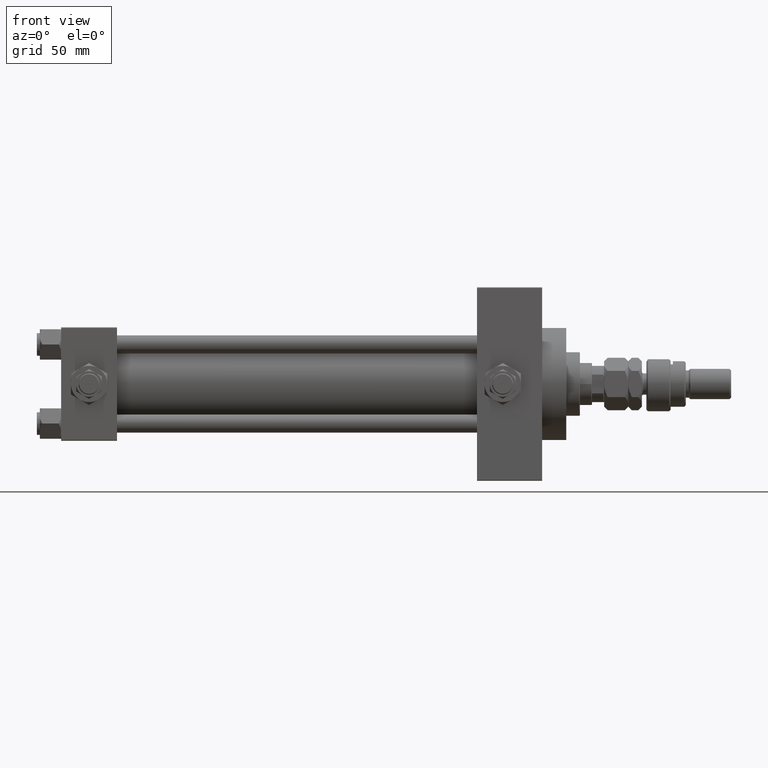
[diagram: clean part render]
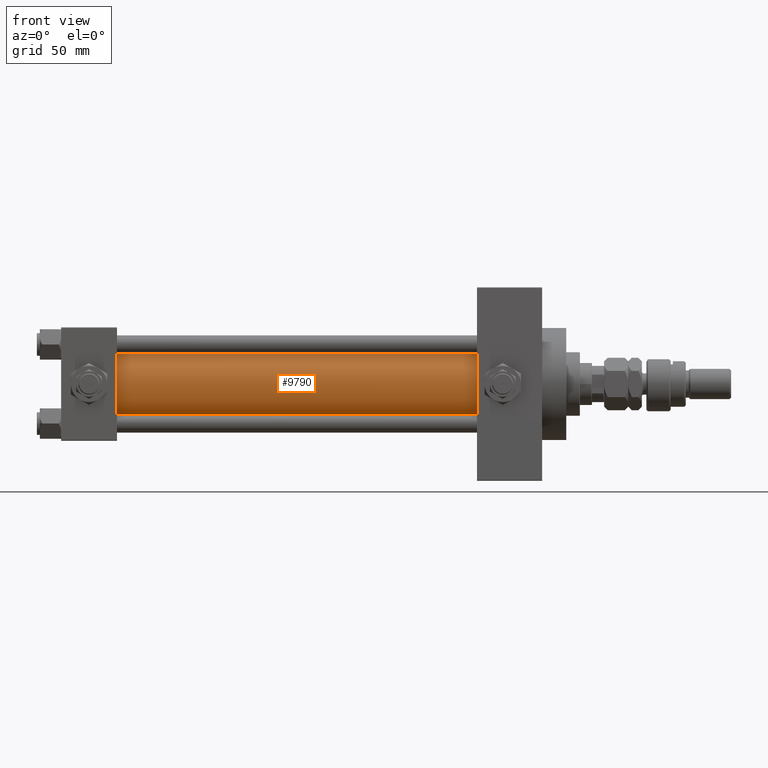
[diagram: same view with one face highlighted and labeled with its STEP entity id]
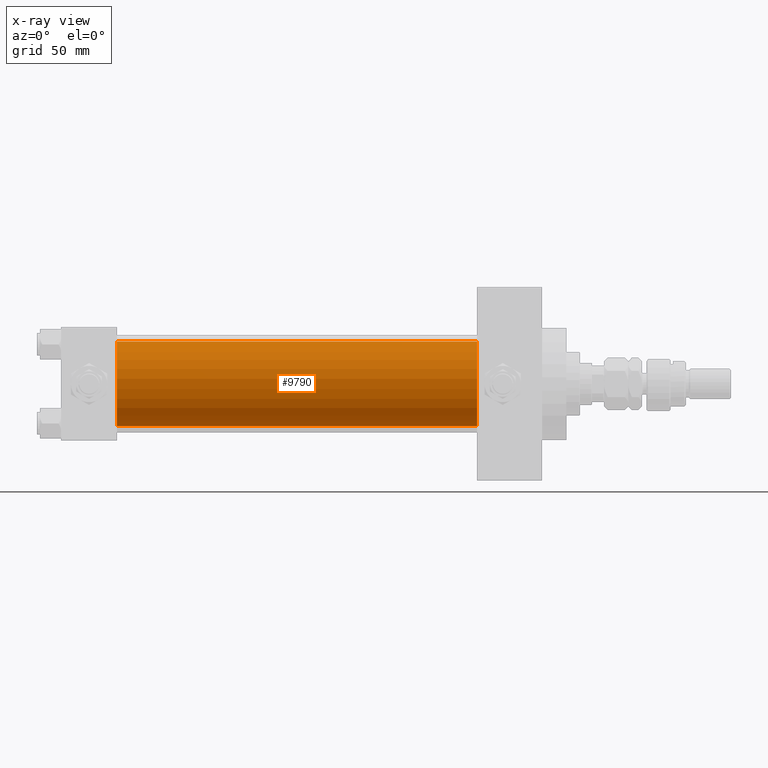
[diagram: x-ray of the same camera — body ghosted, the highlighted face saturated]
A machine part, front view. The second image highlights one B-rep face of the part: STEP entity #9790.
The next image is the same camera in x-ray: the body ghosted, the highlighted face saturated — about 0% of this face is hidden behind the body in this view.
In plain terms, the highlighted cylindrical surface (partial cylindrical patch) has radius 28 mm, axis along (-1, -0, -0).
Its self-contained STEP definition (entity closure, byte-faithful):
#1055 = LINE ( 'NONE', #33991, #37598 ) ;
#1229 = DIRECTION ( 'NONE',  ( -1.000000000000000000, -0.000000000000000000, -0.000000000000000000 ) ) ;
#2188 = EDGE_CURVE ( 'NONE', #15722, #51062, #2885, .T. ) ;
#2885 = CIRCLE ( 'NONE', #29853, 28.00000000000000000 ) ;
#3439 = CARTESIAN_POINT ( 'NONE',  ( 37.00000000000000711, -2.602085213965210642E-15, 0.000000000000000000 ) ) ;
#4143 = CARTESIAN_POINT ( 'NONE',  ( 274.9999999999999432, 8.269258236473784371E-16, -28.00000000000000000 ) ) ;
#5001 = CARTESIAN_POINT ( 'NONE',  ( 274.9999999999999432, 8.269258236473784371E-16, -28.00000000000000000 ) ) ;
#5125 = EDGE_CURVE ( 'NONE', #6506, #19271, #43434, .T. ) ;
#5238 = ORIENTED_EDGE ( 'NONE', *, *, #44368, .T. ) ;
#5538 = AXIS2_PLACEMENT_3D ( 'NONE', #20070, #11908, #31646 ) ;
#6506 = VERTEX_POINT ( 'NONE', #18399 ) ;
#7243 = EDGE_CURVE ( 'NONE', #19271, #51062, #36049, .T. ) ;
#9013 = VECTOR ( 'NONE', #16554, 1000.000000000000000 ) ;
#9790 = ADVANCED_FACE ( 'NONE', ( #32628 ), #49227, .T. ) ;
#11908 = DIRECTION ( 'NONE',  ( 1.000000000000000000, 0.000000000000000000, 0.000000000000000000 ) ) ;
#15722 = VERTEX_POINT ( 'NONE', #28165 ) ;
#16554 = DIRECTION ( 'NONE',  ( -1.000000000000000000, -0.000000000000000000, -0.000000000000000000 ) ) ;
#18399 = CARTESIAN_POINT ( 'NONE',  ( 274.9999999999999432, -2.602085213965210642E-15, 28.00000000000000000 ) ) ;
#19271 = VERTEX_POINT ( 'NONE', #5001 ) ;
#19581 = CARTESIAN_POINT ( 'NONE',  ( 37.00000000000000711, 8.269258236473784371E-16, -28.00000000000000000 ) ) ;
#20070 = CARTESIAN_POINT ( 'NONE',  ( 274.9999999999999432, -2.602085213965210642E-15, 0.000000000000000000 ) ) ;
#21046 = CARTESIAN_POINT ( 'NONE',  ( 274.9999999999999432, -2.602085213965210642E-15, 0.000000000000000000 ) ) ;
#26142 = ORIENTED_EDGE ( 'NONE', *, *, #5125, .F. ) ;
#28165 = CARTESIAN_POINT ( 'NONE',  ( 37.00000000000000711, -2.602085213965210642E-15, 28.00000000000000000 ) ) ;
#29853 = AXIS2_PLACEMENT_3D ( 'NONE', #3439, #35862, #36133 ) ;
#31646 = DIRECTION ( 'NONE',  ( 0.000000000000000000, 0.000000000000000000, -1.000000000000000000 ) ) ;
#32628 = FACE_OUTER_BOUND ( 'NONE', #48202, .T. ) ;
#33991 = CARTESIAN_POINT ( 'NONE',  ( 274.9999999999999432, -2.602085213965210642E-15, 28.00000000000000000 ) ) ;
#35862 = DIRECTION ( 'NONE',  ( 1.000000000000000000, -0.000000000000000000, 0.000000000000000000 ) ) ;
#36049 = LINE ( 'NONE', #4143, #9013 ) ;
#36133 = DIRECTION ( 'NONE',  ( 0.000000000000000000, 0.000000000000000000, 1.000000000000000000 ) ) ;
#37108 = DIRECTION ( 'NONE',  ( 0.000000000000000000, 0.000000000000000000, 1.000000000000000000 ) ) ;
#37598 = VECTOR ( 'NONE', #50068, 1000.000000000000000 ) ;
#41072 = ORIENTED_EDGE ( 'NONE', *, *, #7243, .F. ) ;
#43434 = CIRCLE ( 'NONE', #5538, 28.00000000000000000 ) ;
#44368 = EDGE_CURVE ( 'NONE', #6506, #15722, #1055, .T. ) ;
#44840 = ORIENTED_EDGE ( 'NONE', *, *, #2188, .T. ) ;
#48202 = EDGE_LOOP ( 'NONE', ( #41072, #26142, #5238, #44840 ) ) ;
#48711 = AXIS2_PLACEMENT_3D ( 'NONE', #21046, #1229, #37108 ) ;
#49227 = CYLINDRICAL_SURFACE ( 'NONE', #48711, 28.00000000000000000 ) ;
#50068 = DIRECTION ( 'NONE',  ( -1.000000000000000000, -0.000000000000000000, -0.000000000000000000 ) ) ;
#51062 = VERTEX_POINT ( 'NONE', #19581 ) ;